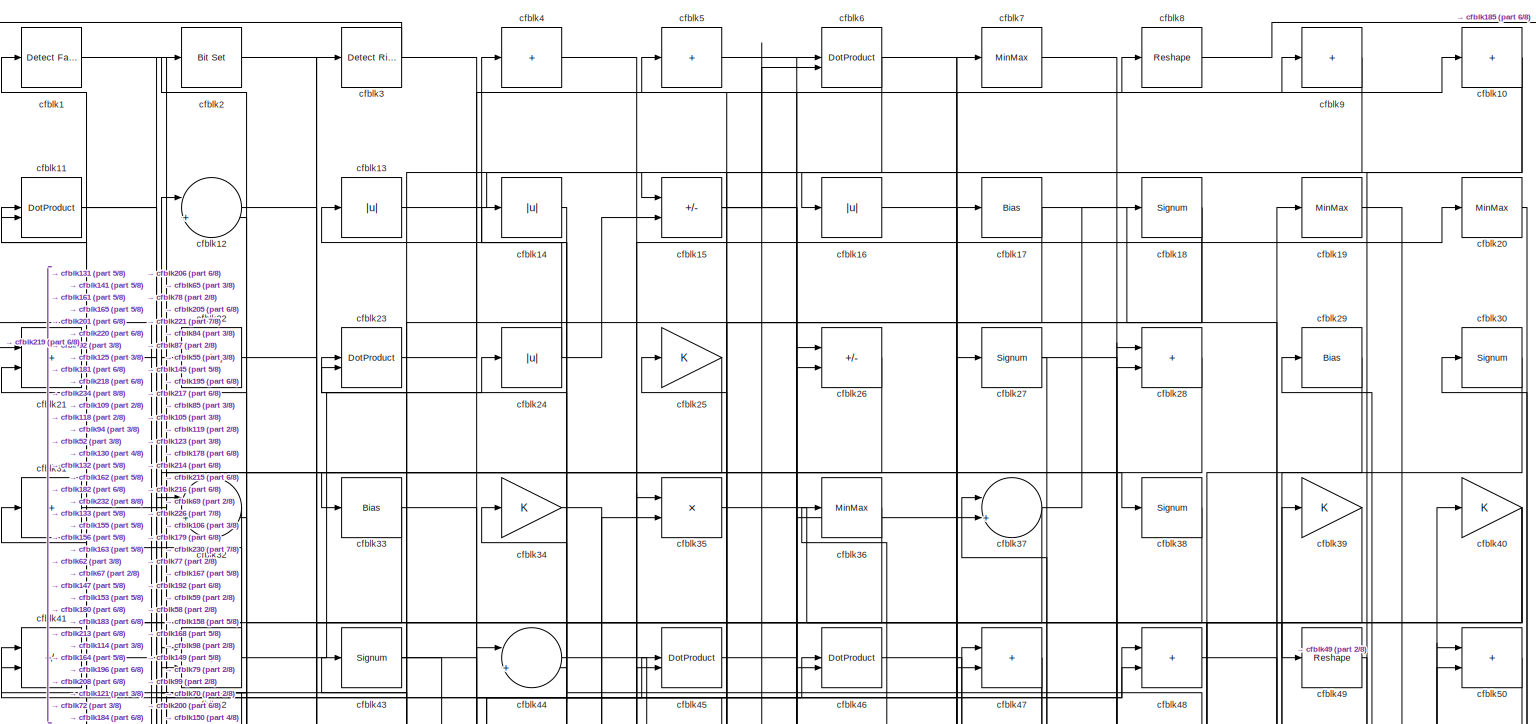
[diagram: root canvas - part 1/8, full width, top band]
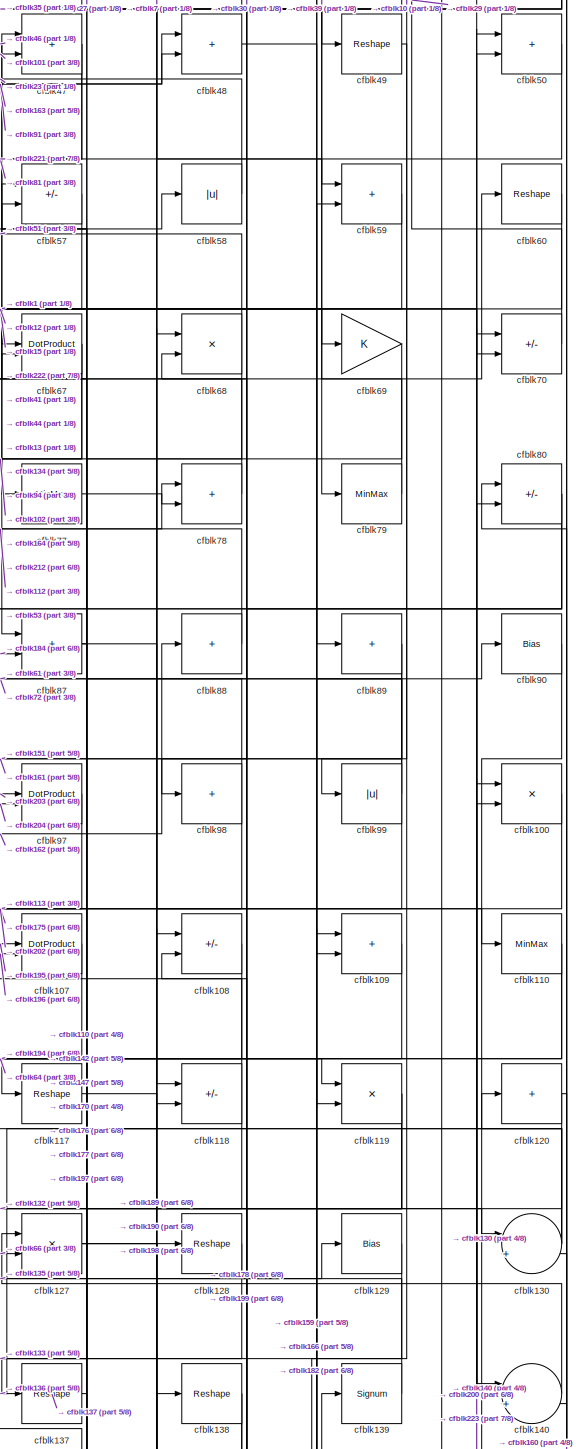
[diagram: root canvas - part 2/8, middle right region]
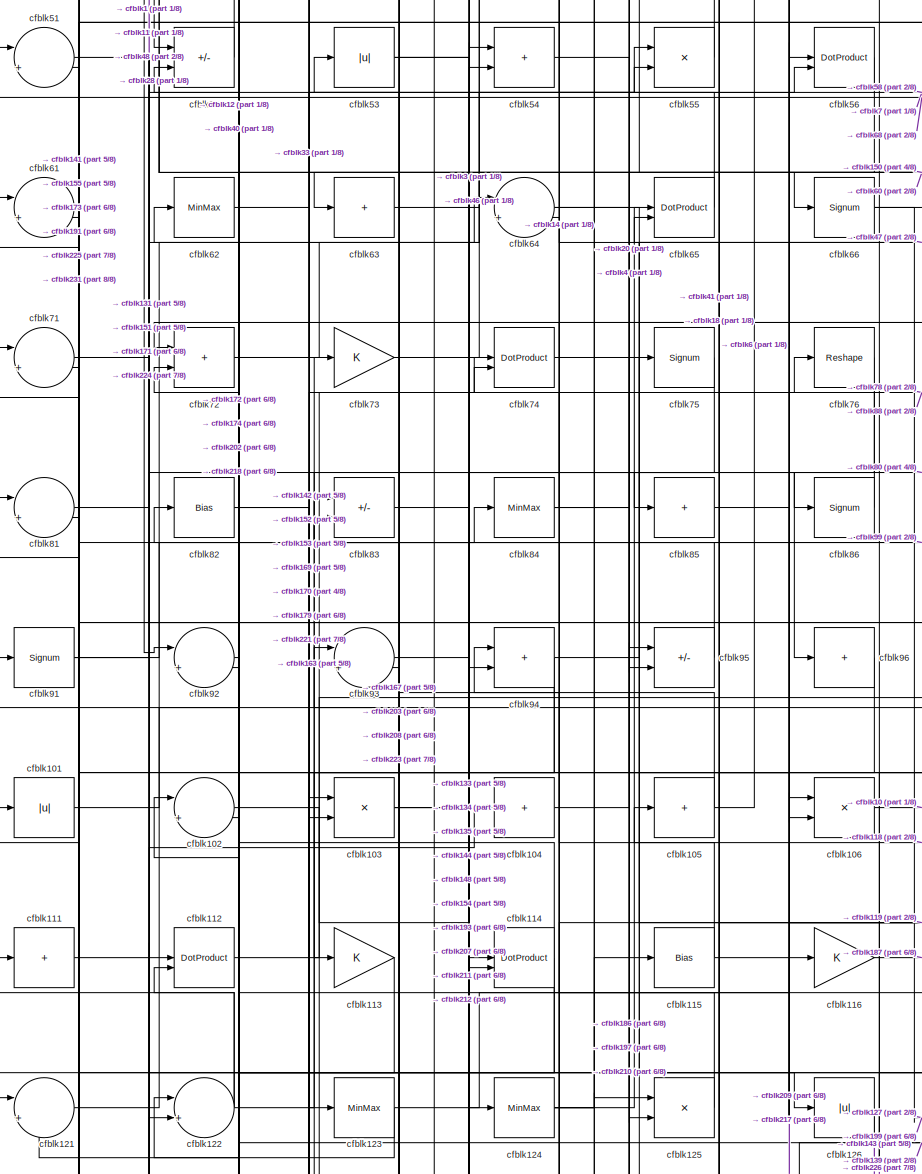
[diagram: root canvas - part 3/8, middle left region]
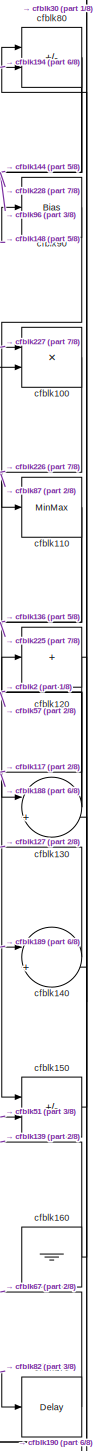
[diagram: root canvas - part 4/8, middle right region]
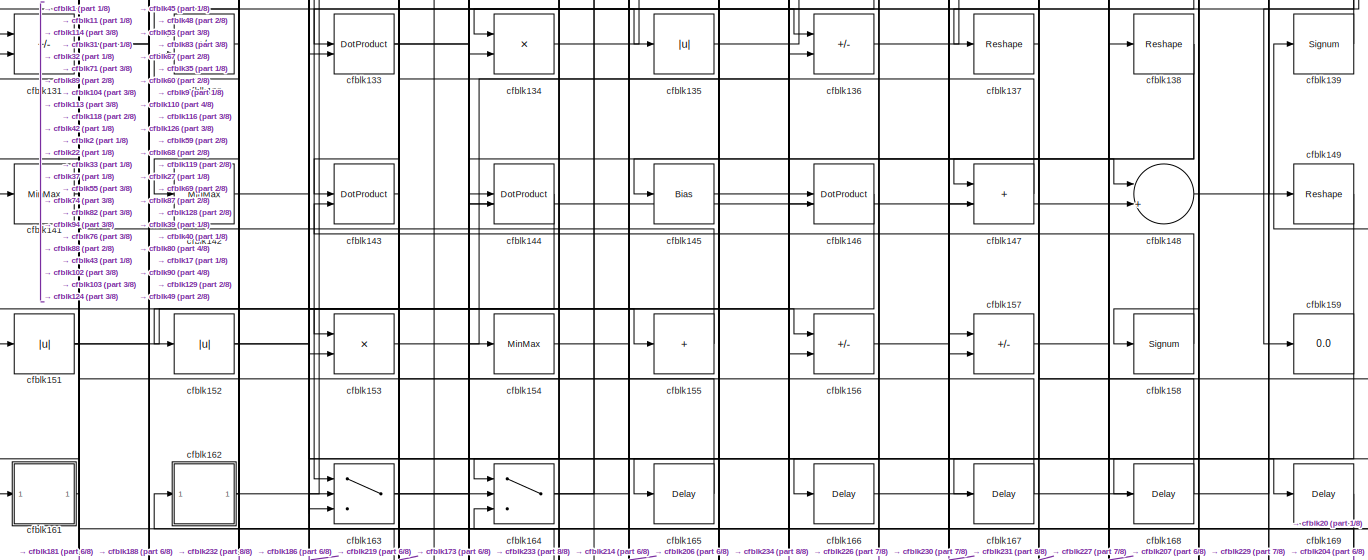
[diagram: root canvas - part 5/8, full width, middle band]
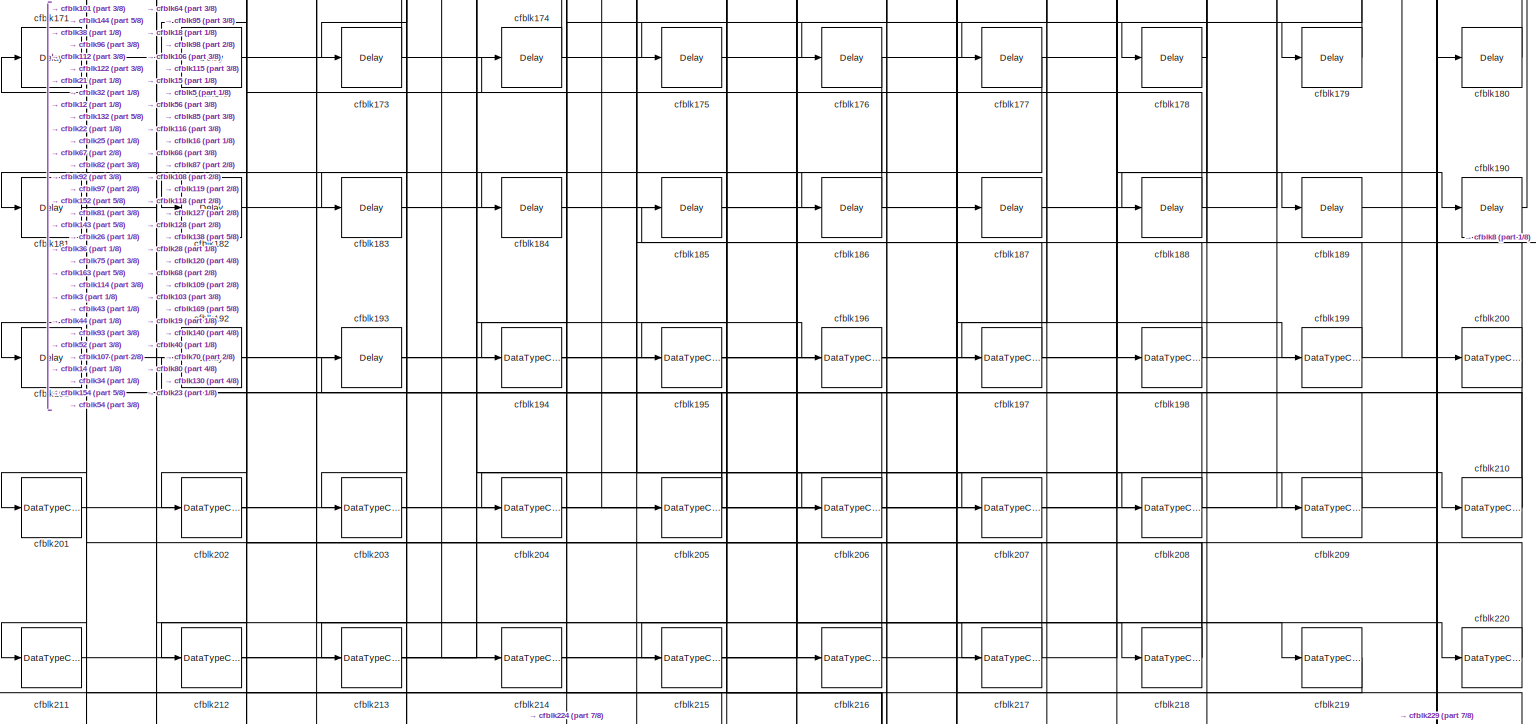
[diagram: root canvas - part 6/8, full width, bottom band]
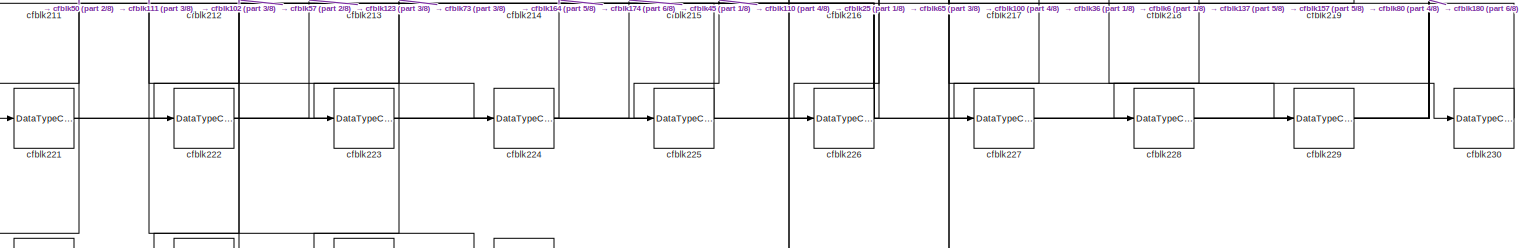
[diagram: root canvas - part 7/8, full width, bottom band]
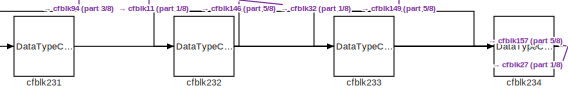
[diagram: root canvas - part 8/8, bottom left region]
MODEL slx_cbd2532036b5
KIND model
CONFIG AbsTol = auto
CONFIG EnableMultiTasking = off
CONFIG FixedStep = auto
CONFIG MaxStep = auto
CONFIG MinStep = auto
CONFIG RelTol = 1e-3
CONFIG SampleTimeConstraint = Unconstrained
CONFIG SolverName = VariableStepAuto
CONFIG StartTime = 0.0
CONFIG StopTime = 10.0
BLOCK [Reference] cfblk1  REF=hdlsllib/Logic and Bit
Operations/Detect Fall
Nonpositive
  SourceBlock = hdlsllib/Logic and Bit\nOperations/Detect Fall\nNonpositive
  SourceType = Detect Fall Nonpositive
BLOCK [Sum] cfblk10
  IconShape = rectangular
  Inputs = +
BLOCK [Product] cfblk100
  Inputs = */
  RndMeth = Zero
  SaturateOnIntegerOverflow = on
BLOCK [Abs] cfblk101
  SaturateOnIntegerOverflow = off
BLOCK [Sum] cfblk102
  Inputs = |++
BLOCK [Product] cfblk103
  Inputs = */
  RndMeth = Zero
  SaturateOnIntegerOverflow = on
BLOCK [Sum] cfblk104
  IconShape = rectangular
  Inputs = +
BLOCK [Sum] cfblk105
  IconShape = rectangular
  Inputs = +
BLOCK [Product] cfblk106
  Inputs = */
  RndMeth = Zero
  SaturateOnIntegerOverflow = on
BLOCK [DotProduct] cfblk107
  OutDataTypeStr = Inherit: Inherit via internal rule
BLOCK [Sum] cfblk108
  IconShape = rectangular
  Inputs = +-
BLOCK [Sum] cfblk109
  IconShape = rectangular
BLOCK [DotProduct] cfblk11
  OutDataTypeStr = Inherit: Inherit via internal rule
BLOCK [MinMax] cfblk110
BLOCK [Sum] cfblk111
  IconShape = rectangular
  Inputs = +
BLOCK [DotProduct] cfblk112
  OutDataTypeStr = Inherit: Inherit via internal rule
BLOCK [Gain] cfblk113
BLOCK [DotProduct] cfblk114
  OutDataTypeStr = Inherit: Inherit via internal rule
BLOCK [Bias] cfblk115
  Bias = 0.0
  SaturateOnIntegerOverflow = off
BLOCK [Gain] cfblk116
BLOCK [Reshape] cfblk117
BLOCK [Sum] cfblk118
  IconShape = rectangular
  Inputs = +-
BLOCK [Product] cfblk119
  Inputs = */
  RndMeth = Zero
  SaturateOnIntegerOverflow = on
BLOCK [Sum] cfblk12
  Inputs = |++
BLOCK [Sum] cfblk120
  IconShape = rectangular
  Inputs = +
BLOCK [Sum] cfblk121
  Inputs = |++
BLOCK [Sum] cfblk122
  Inputs = |++
BLOCK [MinMax] cfblk123
BLOCK [MinMax] cfblk124
BLOCK [Product] cfblk125
  Inputs = */
  RndMeth = Zero
  SaturateOnIntegerOverflow = on
BLOCK [Abs] cfblk126
  SaturateOnIntegerOverflow = off
BLOCK [Product] cfblk127
  Inputs = */
  RndMeth = Zero
  SaturateOnIntegerOverflow = on
BLOCK [Reshape] cfblk128
BLOCK [Bias] cfblk129
  Bias = 0.0
  SaturateOnIntegerOverflow = off
BLOCK [Abs] cfblk13
  SaturateOnIntegerOverflow = off
BLOCK [Sum] cfblk130
  Inputs = |++
BLOCK [Sum] cfblk131
  IconShape = rectangular
  Inputs = +-
BLOCK [Sum] cfblk132
  IconShape = rectangular
  Inputs = +-
BLOCK [DotProduct] cfblk133
  OutDataTypeStr = Inherit: Inherit via internal rule
BLOCK [Product] cfblk134
  Inputs = */
  RndMeth = Zero
  SaturateOnIntegerOverflow = on
BLOCK [Abs] cfblk135
  SaturateOnIntegerOverflow = off
BLOCK [Sum] cfblk136
  IconShape = rectangular
  Inputs = +-
BLOCK [Reshape] cfblk137
BLOCK [Reshape] cfblk138
BLOCK [Signum] cfblk139
BLOCK [Abs] cfblk14
  SaturateOnIntegerOverflow = off
BLOCK [Sum] cfblk140
  Inputs = |++
BLOCK [MinMax] cfblk141
BLOCK [MinMax] cfblk142
BLOCK [DotProduct] cfblk143
  OutDataTypeStr = Inherit: Inherit via internal rule
BLOCK [DotProduct] cfblk144
  OutDataTypeStr = Inherit: Inherit via internal rule
BLOCK [Bias] cfblk145
  Bias = 0.0
  SaturateOnIntegerOverflow = off
BLOCK [DotProduct] cfblk146
  OutDataTypeStr = Inherit: Inherit via internal rule
BLOCK [Sum] cfblk147
  IconShape = rectangular
BLOCK [Sum] cfblk148
  Inputs = |++
BLOCK [Reshape] cfblk149
BLOCK [Sum] cfblk15
  IconShape = rectangular
  Inputs = +-
BLOCK [Sum] cfblk150
  IconShape = rectangular
  Inputs = +-
BLOCK [Abs] cfblk151
  SaturateOnIntegerOverflow = off
BLOCK [Abs] cfblk152
  SaturateOnIntegerOverflow = off
BLOCK [Product] cfblk153
  Inputs = */
  RndMeth = Zero
  SaturateOnIntegerOverflow = on
BLOCK [MinMax] cfblk154
BLOCK [Sum] cfblk155
  IconShape = rectangular
  Inputs = +
BLOCK [Sum] cfblk156
  IconShape = rectangular
  Inputs = +-
BLOCK [Sum] cfblk157
  IconShape = rectangular
  Inputs = +-
BLOCK [Signum] cfblk158
BLOCK [Display] cfblk159
  Decimation = 1
BLOCK [Abs] cfblk16
  SaturateOnIntegerOverflow = off
BLOCK [Ground] cfblk160
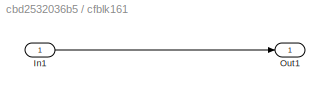
BLOCK [SubSystem] cfblk161
  LibrarySourceBlock = hdlsllib/Ports &\nSubsystems/Subsystem
BLOCK [Inport] cfblk161/In1
BLOCK [Outport] cfblk161/Out1
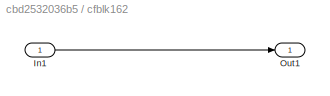
BLOCK [SubSystem] cfblk162
  LibrarySourceBlock = hdlsllib/Ports &\nSubsystems/Subsystem
BLOCK [Inport] cfblk162/In1
BLOCK [Outport] cfblk162/Out1
BLOCK [Switch] cfblk163
  InputSameDT = off
  SaturateOnIntegerOverflow = off
BLOCK [Switch] cfblk164
  InputSameDT = off
  SaturateOnIntegerOverflow = off
BLOCK [Delay] cfblk165
  InputPortMap = u0
  SampleTime = 1
BLOCK [Delay] cfblk166
  InputPortMap = u0
  SampleTime = 1
BLOCK [Delay] cfblk167
  InputPortMap = u0
  SampleTime = 1
BLOCK [Delay] cfblk168
  InputPortMap = u0
  SampleTime = 1
BLOCK [Delay] cfblk169
  InputPortMap = u0
  SampleTime = 1
BLOCK [Bias] cfblk17
  Bias = 0.0
  SaturateOnIntegerOverflow = off
BLOCK [Delay] cfblk170
  InputPortMap = u0
  SampleTime = 1
BLOCK [Delay] cfblk171
  InputPortMap = u0
  SampleTime = 1
BLOCK [Delay] cfblk172
  InputPortMap = u0
  SampleTime = 1
BLOCK [Delay] cfblk173
  InputPortMap = u0
  SampleTime = 1
BLOCK [Delay] cfblk174
  InputPortMap = u0
  SampleTime = 1
BLOCK [Delay] cfblk175
  InputPortMap = u0
  SampleTime = 1
BLOCK [Delay] cfblk176
  InputPortMap = u0
  SampleTime = 1
BLOCK [Delay] cfblk177
  InputPortMap = u0
  SampleTime = 1
BLOCK [Delay] cfblk178
  InputPortMap = u0
  SampleTime = 1
BLOCK [Delay] cfblk179
  InputPortMap = u0
  SampleTime = 1
BLOCK [Signum] cfblk18
BLOCK [Delay] cfblk180
  InputPortMap = u0
  SampleTime = 1
BLOCK [Delay] cfblk181
  InputPortMap = u0
  SampleTime = 1
BLOCK [Delay] cfblk182
  InputPortMap = u0
  SampleTime = 1
BLOCK [Delay] cfblk183
  InputPortMap = u0
  SampleTime = 1
BLOCK [Delay] cfblk184
  InputPortMap = u0
  SampleTime = 1
BLOCK [Delay] cfblk185
  InputPortMap = u0
  SampleTime = 1
BLOCK [Delay] cfblk186
  InputPortMap = u0
  SampleTime = 1
BLOCK [Delay] cfblk187
  InputPortMap = u0
  SampleTime = 1
BLOCK [Delay] cfblk188
  InputPortMap = u0
  SampleTime = 1
BLOCK [Delay] cfblk189
  InputPortMap = u0
  SampleTime = 1
BLOCK [MinMax] cfblk19
BLOCK [Delay] cfblk190
  InputPortMap = u0
  SampleTime = 1
BLOCK [Delay] cfblk191
  InputPortMap = u0
  SampleTime = 1
BLOCK [Delay] cfblk192
  InputPortMap = u0
  SampleTime = 1
BLOCK [Delay] cfblk193
  InputPortMap = u0
  SampleTime = 1
BLOCK [DataTypeConversion] cfblk194
  RndMeth = Floor
  SaturateOnIntegerOverflow = off
BLOCK [DataTypeConversion] cfblk195
  OutDataTypeStr = uint8
  RndMeth = Floor
  SaturateOnIntegerOverflow = off
BLOCK [DataTypeConversion] cfblk196
  OutDataTypeStr = uint8
  RndMeth = Floor
  SaturateOnIntegerOverflow = off
BLOCK [DataTypeConversion] cfblk197
  OutDataTypeStr = uint8
  RndMeth = Floor
  SaturateOnIntegerOverflow = off
BLOCK [DataTypeConversion] cfblk198
  OutDataTypeStr = uint8
  RndMeth = Floor
  SaturateOnIntegerOverflow = off
BLOCK [DataTypeConversion] cfblk199
  OutDataTypeStr = uint8
  RndMeth = Floor
  SaturateOnIntegerOverflow = off
BLOCK [Reference] cfblk2  REF=simulink/Logic and Bit
Operations/Bit Set
  LibrarySourceBlock = hdlsllib/Logic and Bit\nOperations/Bit Set
  SourceBlock = simulink/Logic and Bit\nOperations/Bit Set
  SourceType = Bit Set
BLOCK [MinMax] cfblk20
BLOCK [DataTypeConversion] cfblk200
  RndMeth = Floor
  SaturateOnIntegerOverflow = off
BLOCK [DataTypeConversion] cfblk201
  OutDataTypeStr = uint8
  RndMeth = Floor
  SaturateOnIntegerOverflow = off
BLOCK [DataTypeConversion] cfblk202
  RndMeth = Floor
  SaturateOnIntegerOverflow = off
BLOCK [DataTypeConversion] cfblk203
  OutDataTypeStr = uint8
  RndMeth = Floor
  SaturateOnIntegerOverflow = off
BLOCK [DataTypeConversion] cfblk204
  OutDataTypeStr = uint8
  RndMeth = Floor
  SaturateOnIntegerOverflow = off
BLOCK [DataTypeConversion] cfblk205
  RndMeth = Floor
  SaturateOnIntegerOverflow = off
BLOCK [DataTypeConversion] cfblk206
  OutDataTypeStr = uint8
  RndMeth = Floor
  SaturateOnIntegerOverflow = off
BLOCK [DataTypeConversion] cfblk207
  OutDataTypeStr = uint8
  RndMeth = Floor
  SaturateOnIntegerOverflow = off
BLOCK [DataTypeConversion] cfblk208
  OutDataTypeStr = uint8
  RndMeth = Floor
  SaturateOnIntegerOverflow = off
BLOCK [DataTypeConversion] cfblk209
  OutDataTypeStr = uint8
  RndMeth = Floor
  SaturateOnIntegerOverflow = off
BLOCK [Sum] cfblk21
  IconShape = rectangular
BLOCK [DataTypeConversion] cfblk210
  RndMeth = Floor
  SaturateOnIntegerOverflow = off
BLOCK [DataTypeConversion] cfblk211
  OutDataTypeStr = uint8
  RndMeth = Floor
  SaturateOnIntegerOverflow = off
BLOCK [DataTypeConversion] cfblk212
  OutDataTypeStr = uint8
  RndMeth = Floor
  SaturateOnIntegerOverflow = off
BLOCK [DataTypeConversion] cfblk213
  OutDataTypeStr = uint8
  RndMeth = Floor
  SaturateOnIntegerOverflow = off
BLOCK [DataTypeConversion] cfblk214
  OutDataTypeStr = uint8
  RndMeth = Floor
  SaturateOnIntegerOverflow = off
BLOCK [DataTypeConversion] cfblk215
  OutDataTypeStr = uint8
  RndMeth = Floor
  SaturateOnIntegerOverflow = off
BLOCK [DataTypeConversion] cfblk216
  OutDataTypeStr = uint8
  RndMeth = Floor
  SaturateOnIntegerOverflow = off
BLOCK [DataTypeConversion] cfblk217
  OutDataTypeStr = uint8
  RndMeth = Floor
  SaturateOnIntegerOverflow = off
BLOCK [DataTypeConversion] cfblk218
  RndMeth = Floor
  SaturateOnIntegerOverflow = off
BLOCK [DataTypeConversion] cfblk219
  OutDataTypeStr = uint8
  RndMeth = Floor
  SaturateOnIntegerOverflow = off
BLOCK [Reshape] cfblk22
BLOCK [DataTypeConversion] cfblk220
  OutDataTypeStr = uint8
  RndMeth = Floor
  SaturateOnIntegerOverflow = off
BLOCK [DataTypeConversion] cfblk221
  RndMeth = Floor
  SaturateOnIntegerOverflow = off
BLOCK [DataTypeConversion] cfblk222
  OutDataTypeStr = uint8
  RndMeth = Floor
  SaturateOnIntegerOverflow = off
BLOCK [DataTypeConversion] cfblk223
  OutDataTypeStr = uint8
  RndMeth = Floor
  SaturateOnIntegerOverflow = off
BLOCK [DataTypeConversion] cfblk224
  OutDataTypeStr = uint8
  RndMeth = Floor
  SaturateOnIntegerOverflow = off
BLOCK [DataTypeConversion] cfblk225
  OutDataTypeStr = uint8
  RndMeth = Floor
  SaturateOnIntegerOverflow = off
BLOCK [DataTypeConversion] cfblk226
  RndMeth = Floor
  SaturateOnIntegerOverflow = off
BLOCK [DataTypeConversion] cfblk227
  OutDataTypeStr = uint8
  RndMeth = Floor
  SaturateOnIntegerOverflow = off
BLOCK [DataTypeConversion] cfblk228
  OutDataTypeStr = uint8
  RndMeth = Floor
  SaturateOnIntegerOverflow = off
BLOCK [DataTypeConversion] cfblk229
  OutDataTypeStr = uint8
  RndMeth = Floor
  SaturateOnIntegerOverflow = off
BLOCK [DotProduct] cfblk23
  OutDataTypeStr = Inherit: Inherit via internal rule
BLOCK [DataTypeConversion] cfblk230
  OutDataTypeStr = uint8
  RndMeth = Floor
  SaturateOnIntegerOverflow = off
BLOCK [DataTypeConversion] cfblk231
  OutDataTypeStr = uint8
  RndMeth = Floor
  SaturateOnIntegerOverflow = off
BLOCK [DataTypeConversion] cfblk232
  RndMeth = Floor
  SaturateOnIntegerOverflow = off
BLOCK [DataTypeConversion] cfblk233
  OutDataTypeStr = uint8
  RndMeth = Floor
  SaturateOnIntegerOverflow = off
BLOCK [DataTypeConversion] cfblk234
  OutDataTypeStr = uint8
  RndMeth = Floor
  SaturateOnIntegerOverflow = off
BLOCK [Abs] cfblk24
  SaturateOnIntegerOverflow = off
BLOCK [Gain] cfblk25
BLOCK [Sum] cfblk26
  IconShape = rectangular
  Inputs = +-
BLOCK [Signum] cfblk27
BLOCK [Sum] cfblk28
  IconShape = rectangular
BLOCK [Bias] cfblk29
  Bias = 0.0
  SaturateOnIntegerOverflow = off
BLOCK [Reference] cfblk3  REF=hdlsllib/Logic and Bit
Operations/Detect Rise
Positive
  SourceBlock = hdlsllib/Logic and Bit\nOperations/Detect Rise\nPositive
  SourceType = Detect Rise Positive
BLOCK [Signum] cfblk30
BLOCK [Sum] cfblk31
  IconShape = rectangular
  Inputs = +
BLOCK [Sum] cfblk32
  Inputs = |++
BLOCK [Bias] cfblk33
  Bias = 0.0
  SaturateOnIntegerOverflow = off
BLOCK [Gain] cfblk34
BLOCK [Product] cfblk35
  Inputs = */
  RndMeth = Zero
  SaturateOnIntegerOverflow = on
BLOCK [MinMax] cfblk36
BLOCK [Sum] cfblk37
  Inputs = |++
BLOCK [Signum] cfblk38
BLOCK [Gain] cfblk39
BLOCK [Sum] cfblk4
  IconShape = rectangular
  Inputs = +
BLOCK [Gain] cfblk40
BLOCK [Sum] cfblk41
  IconShape = rectangular
  Inputs = +-
BLOCK [Sum] cfblk42
  IconShape = rectangular
  Inputs = +-
BLOCK [Signum] cfblk43
BLOCK [Sum] cfblk44
  Inputs = |++
BLOCK [DotProduct] cfblk45
  OutDataTypeStr = Inherit: Inherit via internal rule
BLOCK [DotProduct] cfblk46
  OutDataTypeStr = Inherit: Inherit via internal rule
BLOCK [Sum] cfblk47
  IconShape = rectangular
BLOCK [Sum] cfblk48
  IconShape = rectangular
BLOCK [Reshape] cfblk49
BLOCK [Sum] cfblk5
  IconShape = rectangular
  Inputs = +
BLOCK [Sum] cfblk50
  IconShape = rectangular
BLOCK [Sum] cfblk51
  Inputs = |++
BLOCK [Sum] cfblk52
  IconShape = rectangular
  Inputs = +-
BLOCK [Abs] cfblk53
  SaturateOnIntegerOverflow = off
BLOCK [Sum] cfblk54
  IconShape = rectangular
BLOCK [Product] cfblk55
  Inputs = */
  RndMeth = Zero
  SaturateOnIntegerOverflow = on
BLOCK [DotProduct] cfblk56
  OutDataTypeStr = Inherit: Inherit via internal rule
BLOCK [Sum] cfblk57
  IconShape = rectangular
  Inputs = +-
BLOCK [Abs] cfblk58
  SaturateOnIntegerOverflow = off
BLOCK [Sum] cfblk59
  IconShape = rectangular
BLOCK [DotProduct] cfblk6
  OutDataTypeStr = Inherit: Inherit via internal rule
BLOCK [Reshape] cfblk60
BLOCK [Sum] cfblk61
  Inputs = |++
BLOCK [MinMax] cfblk62
BLOCK [Sum] cfblk63
  IconShape = rectangular
  Inputs = +
BLOCK [Sum] cfblk64
  Inputs = |++
BLOCK [DotProduct] cfblk65
  OutDataTypeStr = Inherit: Inherit via internal rule
BLOCK [Signum] cfblk66
BLOCK [DotProduct] cfblk67
  OutDataTypeStr = Inherit: Inherit via internal rule
BLOCK [Product] cfblk68
  Inputs = */
  RndMeth = Zero
  SaturateOnIntegerOverflow = on
BLOCK [Gain] cfblk69
BLOCK [MinMax] cfblk7
BLOCK [Sum] cfblk70
  IconShape = rectangular
  Inputs = +-
BLOCK [Sum] cfblk71
  Inputs = |++
BLOCK [Sum] cfblk72
  IconShape = rectangular
BLOCK [Gain] cfblk73
BLOCK [DotProduct] cfblk74
  OutDataTypeStr = Inherit: Inherit via internal rule
BLOCK [Signum] cfblk75
BLOCK [Reshape] cfblk76
BLOCK [MinMax] cfblk77
BLOCK [Sum] cfblk78
  IconShape = rectangular
BLOCK [MinMax] cfblk79
BLOCK [Reshape] cfblk8
BLOCK [Sum] cfblk80
  IconShape = rectangular
  Inputs = +-
BLOCK [Sum] cfblk81
  Inputs = |++
BLOCK [Bias] cfblk82
  Bias = 0.0
  SaturateOnIntegerOverflow = off
BLOCK [Sum] cfblk83
  IconShape = rectangular
  Inputs = +-
BLOCK [MinMax] cfblk84
BLOCK [Sum] cfblk85
  IconShape = rectangular
  Inputs = +
BLOCK [Signum] cfblk86
BLOCK [Sum] cfblk87
  IconShape = rectangular
BLOCK [Sum] cfblk88
  IconShape = rectangular
  Inputs = +
BLOCK [Sum] cfblk89
  IconShape = rectangular
  Inputs = +
BLOCK [Sum] cfblk9
  IconShape = rectangular
  Inputs = +
BLOCK [Bias] cfblk90
  Bias = 0.0
  SaturateOnIntegerOverflow = off
BLOCK [Signum] cfblk91
BLOCK [Sum] cfblk92
  Inputs = |++
BLOCK [Sum] cfblk93
  Inputs = |++
BLOCK [Sum] cfblk94
  IconShape = rectangular
BLOCK [Sum] cfblk95
  IconShape = rectangular
  Inputs = +-
BLOCK [Sum] cfblk96
  IconShape = rectangular
  Inputs = +
BLOCK [DotProduct] cfblk97
  OutDataTypeStr = Inherit: Inherit via internal rule
BLOCK [Sum] cfblk98
  IconShape = rectangular
  Inputs = +
BLOCK [Abs] cfblk99
  SaturateOnIntegerOverflow = off
LINE cfblk100:1 -> cfblk226:1
LINE cfblk101:1 -> cfblk47:2
LINE cfblk102:1 -> cfblk144:1
NET cfblk103:1 -> cfblk148:2, cfblk154:1
LINE cfblk104:1 -> cfblk75:1
NET cfblk105:1 -> cfblk41:2, cfblk6:2
LINE cfblk106:1 -> cfblk10:1
LINE cfblk107:1 -> cfblk194:1
LINE cfblk108:1 -> cfblk197:1
LINE cfblk109:1 -> cfblk117:1
NET cfblk10:1 -> cfblk33:1, cfblk99:1
NET cfblk110:1 -> cfblk136:2, cfblk225:1
LINE cfblk111:1 -> cfblk224:1
LINE cfblk112:1 -> cfblk78:1
LINE cfblk113:1 -> cfblk152:1
NET cfblk114:1 -> cfblk121:1, cfblk141:1, cfblk62:1
NET cfblk115:1 -> cfblk209:1, cfblk65:1
LINE cfblk116:1 -> cfblk187:1
LINE cfblk117:1 -> cfblk130:1
NET cfblk118:1 -> cfblk132:1, cfblk94:1
NET cfblk119:1 -> cfblk142:1, cfblk176:1, cfblk177:1
NET cfblk11:1 -> cfblk125:2, cfblk234:1
NET cfblk120:1 -> cfblk140:2, cfblk188:1
LINE cfblk121:1 -> cfblk46:1
NET cfblk122:1 -> cfblk112:2, cfblk61:2, cfblk76:1
NET cfblk123:1 -> cfblk121:2, cfblk46:2
NET cfblk124:1 -> cfblk105:1, cfblk115:1, cfblk125:1
LINE cfblk125:1 -> cfblk74:2
LINE cfblk126:1 -> cfblk143:1
NET cfblk127:1 -> cfblk189:1, cfblk190:1
LINE cfblk128:1 -> cfblk133:1
LINE cfblk129:1 -> cfblk134:1
LINE cfblk12:1 -> cfblk67:1
NET cfblk130:1 -> cfblk120:1, cfblk2:1, cfblk57:1
NET cfblk131:1 -> cfblk104:1, cfblk136:1
LINE cfblk132:1 -> cfblk42:1
NET cfblk133:1 -> cfblk124:1, cfblk45:1
LINE cfblk134:1 -> cfblk60:1
LINE cfblk135:1 -> cfblk129:1
LINE cfblk136:1 -> cfblk68:1
LINE cfblk137:1 -> cfblk227:1
NET cfblk138:1 -> cfblk165:1, cfblk166:1
LINE cfblk139:1 -> cfblk91:1
LINE cfblk13:1 -> cfblk15:1
LINE cfblk140:1 -> cfblk127:1
LINE cfblk141:1 -> cfblk31:1
LINE cfblk142:1 -> cfblk74:1
LINE cfblk143:1 -> cfblk173:1
LINE cfblk144:1 -> cfblk181:1
LINE cfblk145:1 -> cfblk37:2
LINE cfblk146:1 -> cfblk232:1
LINE cfblk147:1 -> cfblk43:1
LINE cfblk148:1 -> cfblk90:1
LINE cfblk149:1 -> cfblk233:1
LINE cfblk14:1 -> cfblk184:1
LINE cfblk150:1 -> cfblk30:1
NET cfblk151:1 -> cfblk131:2, cfblk156:1, cfblk55:1
NET cfblk152:1 -> cfblk219:1, cfblk55:2
LINE cfblk153:1 -> cfblk116:1
LINE cfblk154:1 -> cfblk206:1
LINE cfblk155:1 -> cfblk71:1
LINE cfblk156:1 -> cfblk17:1
LINE cfblk157:1 -> cfblk229:1
LINE cfblk158:1 -> cfblk143:2
NET cfblk15:1 -> cfblk119:2, cfblk178:1, cfblk69:1, cfblk6:1
NET cfblk160:1 -> cfblk139:1, cfblk80:1
LINE cfblk161/In1:1 -> cfblk161/Out1:1
LINE cfblk161:1 -> cfblk11:1
LINE cfblk162/In1:1 -> cfblk162/Out1:1
NET cfblk162:1 -> cfblk42:2, cfblk88:1
NET cfblk163:1 -> cfblk214:1, cfblk48:2
NET cfblk164:1 -> cfblk35:1, cfblk35:2
LINE cfblk165:1 -> cfblk1:1
LINE cfblk166:1 -> cfblk59:2
LINE cfblk167:1 -> cfblk83:2
LINE cfblk168:1 -> cfblk37:1
LINE cfblk169:1 -> cfblk204:1
LINE cfblk16:1 -> cfblk179:1
LINE cfblk170:1 -> cfblk67:2
LINE cfblk171:1 -> cfblk122:2
LINE cfblk172:1 -> cfblk56:1
LINE cfblk173:1 -> cfblk81:1
LINE cfblk174:1 -> cfblk52:2
LINE cfblk175:1 -> cfblk118:2
LINE cfblk176:1 -> cfblk211:1
LINE cfblk177:1 -> cfblk215:1
LINE cfblk178:1 -> cfblk68:2
LINE cfblk179:1 -> cfblk103:1
NET cfblk17:1 -> cfblk149:1, cfblk153:1
LINE cfblk180:1 -> cfblk23:2
LINE cfblk181:1 -> cfblk32:1
LINE cfblk182:1 -> cfblk109:1
LINE cfblk183:1 -> cfblk44:1
LINE cfblk184:1 -> cfblk87:2
LINE cfblk185:1 -> cfblk220:1
LINE cfblk186:1 -> cfblk163:2
LINE cfblk187:1 -> cfblk198:1
LINE cfblk188:1 -> cfblk132:2
LINE cfblk189:1 -> cfblk140:1
NET cfblk18:1 -> cfblk195:1, cfblk85:1
LINE cfblk190:1 -> cfblk130:2
LINE cfblk191:1 -> cfblk106:1
LINE cfblk192:1 -> cfblk28:1
LINE cfblk193:1 -> cfblk114:1
NET cfblk194:1 -> cfblk128:1, cfblk80:2
LINE cfblk195:1 -> cfblk107:1
LINE cfblk196:1 -> cfblk107:2
LINE cfblk197:1 -> cfblk95:1
LINE cfblk198:1 -> cfblk108:1
LINE cfblk199:1 -> cfblk108:2
LINE cfblk19:1 -> cfblk200:1
NET cfblk1:1 -> cfblk118:1, cfblk94:2
NET cfblk200:1 -> cfblk193:1, cfblk70:1
LINE cfblk201:1 -> cfblk19:1
NET cfblk202:1 -> cfblk103:2, cfblk82:1
LINE cfblk203:1 -> cfblk97:1
LINE cfblk204:1 -> cfblk97:2
NET cfblk205:1 -> cfblk171:1, cfblk22:1, cfblk40:1
LINE cfblk206:1 -> cfblk34:1
LINE cfblk207:1 -> cfblk138:1
LINE cfblk208:1 -> cfblk93:1
LINE cfblk209:1 -> cfblk93:2
LINE cfblk20:1 -> cfblk162:1
NET cfblk210:1 -> cfblk101:1, cfblk112:1
LINE cfblk211:1 -> cfblk54:1
LINE cfblk212:1 -> cfblk54:2
LINE cfblk213:1 -> cfblk28:2
LINE cfblk214:1 -> cfblk26:1
LINE cfblk215:1 -> cfblk26:2
LINE cfblk216:1 -> cfblk192:1
LINE cfblk217:1 -> cfblk5:1
NET cfblk218:1 -> cfblk122:1, cfblk12:2
LINE cfblk219:1 -> cfblk21:1
LINE cfblk21:1 -> cfblk218:1
LINE cfblk220:1 -> cfblk21:2
NET cfblk221:1 -> cfblk123:1, cfblk45:2
LINE cfblk222:1 -> cfblk50:1
LINE cfblk223:1 -> cfblk50:2
LINE cfblk224:1 -> cfblk174:1
LINE cfblk225:1 -> cfblk111:1
NET cfblk226:1 -> cfblk102:1, cfblk164:3, cfblk25:1, cfblk36:1, cfblk65:2
LINE cfblk227:1 -> cfblk100:1
LINE cfblk228:1 -> cfblk100:2
LINE cfblk229:1 -> cfblk180:1
LINE cfblk22:1 -> cfblk155:1
LINE cfblk230:1 -> cfblk157:1
LINE cfblk231:1 -> cfblk157:2
NET cfblk232:1 -> cfblk27:1, cfblk32:2
LINE cfblk233:1 -> cfblk146:1
LINE cfblk234:1 -> cfblk146:2
LINE cfblk23:1 -> cfblk9:1
NET cfblk24:1 -> cfblk15:2, cfblk4:1
LINE cfblk25:1 -> cfblk182:1
LINE cfblk26:1 -> cfblk213:1
NET cfblk27:1 -> cfblk167:1, cfblk70:2
LINE cfblk28:1 -> cfblk52:1
LINE cfblk29:1 -> cfblk79:1
LINE cfblk2:1 -> cfblk156:2
LINE cfblk30:1 -> cfblk98:1
LINE cfblk31:1 -> cfblk38:1
LINE cfblk32:1 -> cfblk131:1
NET cfblk33:1 -> cfblk114:2, cfblk163:3
LINE cfblk34:1 -> cfblk205:1
LINE cfblk35:1 -> cfblk49:1
LINE cfblk36:1 -> cfblk183:1
NET cfblk37:1 -> cfblk133:2, cfblk18:1
LINE cfblk38:1 -> cfblk201:1
LINE cfblk39:1 -> cfblk168:1
NET cfblk3:1 -> cfblk196:1, cfblk92:1
NET cfblk40:1 -> cfblk158:1, cfblk44:2, cfblk92:2
LINE cfblk41:1 -> cfblk109:2
NET cfblk42:1 -> cfblk11:2, cfblk24:1
NET cfblk43:1 -> cfblk164:2, cfblk208:1
LINE cfblk44:1 -> cfblk87:1
LINE cfblk45:1 -> cfblk8:1
LINE cfblk46:1 -> cfblk77:1
NET cfblk47:1 -> cfblk51:2, cfblk81:2
LINE cfblk48:1 -> cfblk89:1
LINE cfblk49:1 -> cfblk159:1
LINE cfblk4:1 -> cfblk106:2
LINE cfblk50:1 -> cfblk221:1
LINE cfblk51:1 -> cfblk150:2
LINE cfblk52:1 -> cfblk12:1
NET cfblk53:1 -> cfblk134:2, cfblk148:1
LINE cfblk54:1 -> cfblk210:1
LINE cfblk55:1 -> cfblk41:1
LINE cfblk56:1 -> cfblk63:1
LINE cfblk57:1 -> cfblk222:1
LINE cfblk58:1 -> cfblk23:1
LINE cfblk59:1 -> cfblk147:2
LINE cfblk5:1 -> cfblk216:1
LINE cfblk60:1 -> cfblk72:1
LINE cfblk61:1 -> cfblk71:2
LINE cfblk62:1 -> cfblk3:1
LINE cfblk63:1 -> cfblk66:1
NET cfblk64:1 -> cfblk119:1, cfblk186:1
LINE cfblk65:1 -> cfblk14:1
NET cfblk66:1 -> cfblk127:2, cfblk199:1
NET cfblk67:1 -> cfblk164:1, cfblk212:1
NET cfblk68:1 -> cfblk102:2, cfblk51:1
LINE cfblk69:1 -> cfblk137:1
NET cfblk6:1 -> cfblk16:1, cfblk230:1
LINE cfblk70:1 -> cfblk29:1
LINE cfblk71:1 -> cfblk64:1
NET cfblk72:1 -> cfblk58:1, cfblk7:1
NET cfblk73:1 -> cfblk223:1, cfblk56:2
LINE cfblk74:1 -> cfblk126:1
LINE cfblk75:1 -> cfblk203:1
LINE cfblk76:1 -> cfblk163:1
LINE cfblk77:1 -> cfblk78:2
LINE cfblk78:1 -> cfblk13:1
LINE cfblk79:1 -> cfblk39:1
LINE cfblk7:1 -> cfblk59:1
NET cfblk80:1 -> cfblk144:2, cfblk228:1, cfblk96:1
LINE cfblk81:1 -> cfblk86:1
NET cfblk82:1 -> cfblk169:1, cfblk170:1
LINE cfblk83:1 -> cfblk135:1
NET cfblk84:1 -> cfblk20:1, cfblk64:2, cfblk95:2
LINE cfblk85:1 -> cfblk217:1
LINE cfblk86:1 -> cfblk73:1
NET cfblk87:1 -> cfblk110:1, cfblk147:1
LINE cfblk88:1 -> cfblk53:1
NET cfblk89:1 -> cfblk151:1, cfblk161:1
LINE cfblk8:1 -> cfblk185:1
LINE cfblk90:1 -> cfblk150:1
NET cfblk91:1 -> cfblk48:1, cfblk84:1
LINE cfblk92:1 -> cfblk172:1
LINE cfblk93:1 -> cfblk207:1
NET cfblk94:1 -> cfblk153:2, cfblk231:1, cfblk47:1
LINE cfblk95:1 -> cfblk83:1
LINE cfblk96:1 -> cfblk191:1
LINE cfblk97:1 -> cfblk202:1
NET cfblk98:1 -> cfblk175:1, cfblk57:2
NET cfblk99:1 -> cfblk113:1, cfblk61:1, cfblk72:2
LINE cfblk9:1 -> cfblk145:1
note: NET lines group one-source signal fan-out (src -> all destinations, sorted); 1:1 wires keep LINE
